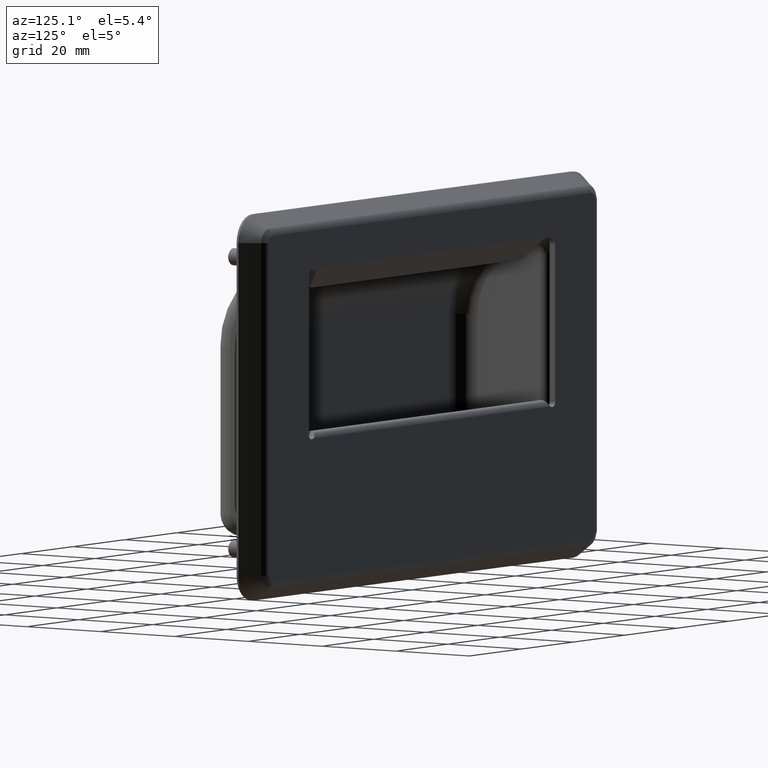
[diagram: clean part render]
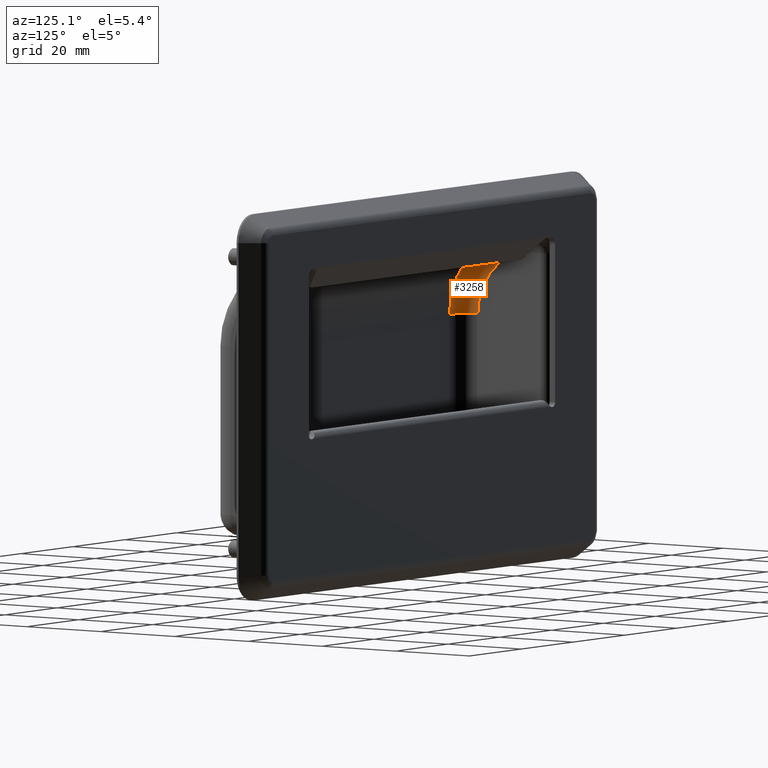
[diagram: same view with one face highlighted and labeled with its STEP entity id]
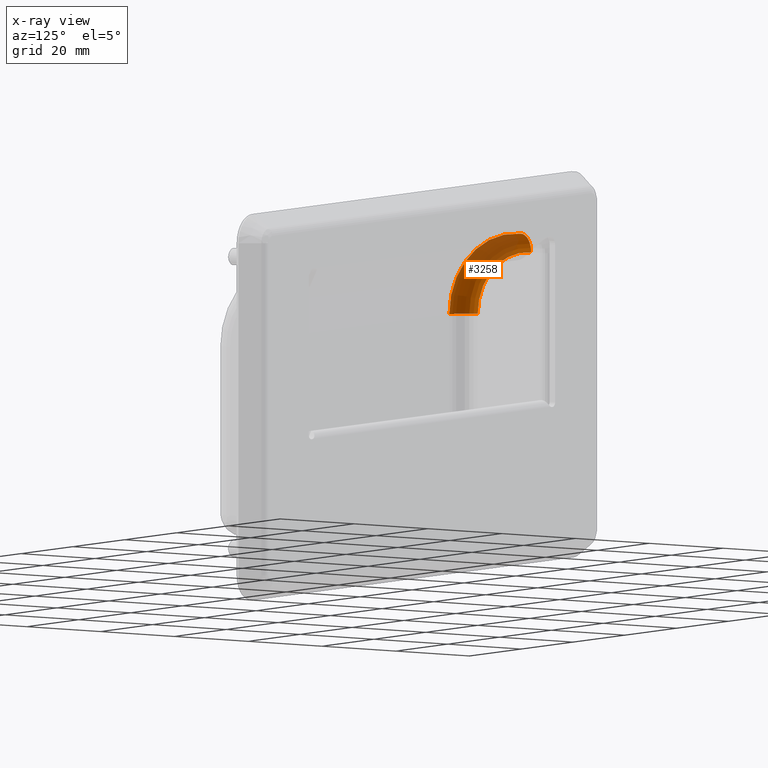
[diagram: x-ray of the same camera — body ghosted, the highlighted face saturated]
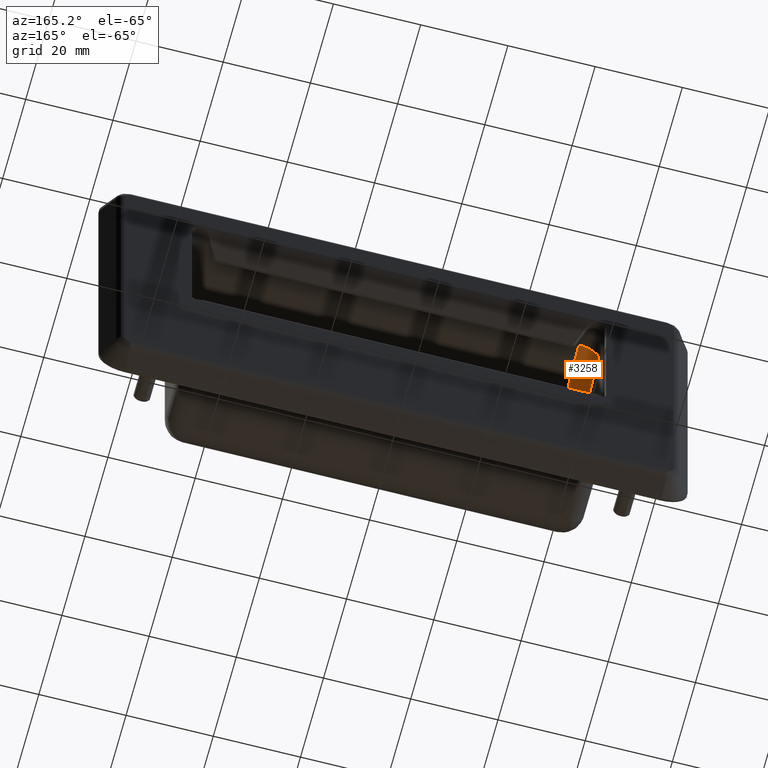
[diagram: same view with one face highlighted and labeled with its STEP entity id]
A machine part, auxiliary view. The second image highlights one B-rep face of the part: STEP entity #3258.
The next image is the same camera in x-ray: the body ghosted, the highlighted face saturated — about 37% of this face is hidden behind the body in this view.
A second angle (auxiliary view) of the same face is appended — the face is thin or edge-on in the first view.
In plain terms, the highlighted toroidal blend (fillet) surface has major radius 14.5 mm and minor (blend) radius 4.5 mm.
Its self-contained STEP definition (entity closure, byte-faithful):
#32=TOROIDAL_SURFACE('',#3556,14.5,4.5);
#443=FACE_OUTER_BOUND('',#667,.T.);
#667=EDGE_LOOP('',(#2943,#2944,#2945,#2946));
#1331=CIRCLE('',#3555,4.5);
#1332=CIRCLE('',#3557,4.5);
#1333=CIRCLE('',#3558,19.);
#1334=CIRCLE('',#3559,14.5);
#1630=VERTEX_POINT('',#7259);
#1631=VERTEX_POINT('',#7260);
#1632=VERTEX_POINT('',#7265);
#1633=VERTEX_POINT('',#7266);
#2078=EDGE_CURVE('',#1630,#1631,#1331,.T.);
#2081=EDGE_CURVE('',#1632,#1633,#1332,.T.);
#2082=EDGE_CURVE('',#1633,#1631,#1333,.T.);
#2083=EDGE_CURVE('',#1630,#1632,#1334,.T.);
#2943=ORIENTED_EDGE('',*,*,#2081,.T.);
#2944=ORIENTED_EDGE('',*,*,#2082,.T.);
#2945=ORIENTED_EDGE('',*,*,#2078,.F.);
#2946=ORIENTED_EDGE('',*,*,#2083,.T.);
#3258=ADVANCED_FACE('',(#443),#32,.F.);
#3555=AXIS2_PLACEMENT_3D('',#7261,#4357,#4358);
#3556=AXIS2_PLACEMENT_3D('',#7264,#4361,#4362);
#3557=AXIS2_PLACEMENT_3D('',#7267,#4363,#4364);
#3558=AXIS2_PLACEMENT_3D('',#7268,#4365,#4366);
#3559=AXIS2_PLACEMENT_3D('',#7269,#4367,#4368);
#4357=DIRECTION('center_axis',(0.,0.,1.));
#4358=DIRECTION('ref_axis',(-1.,0.,0.));
#4361=DIRECTION('center_axis',(-1.,0.,0.));
#4362=DIRECTION('ref_axis',(0.,0.,1.));
#4363=DIRECTION('center_axis',(0.,1.,-2.46716227694479E-16));
#4364=DIRECTION('ref_axis',(-1.,0.,0.));
#4365=DIRECTION('center_axis',(1.,0.,0.));
#4366=DIRECTION('ref_axis',(0.,-0.707106781186548,0.707106781186547));
#4367=DIRECTION('center_axis',(-1.,0.,0.));
#4368=DIRECTION('ref_axis',(0.,-0.707106781186548,0.707106781186547));
#7259=CARTESIAN_POINT('',(-47.5,-19.,11.5));
#7260=CARTESIAN_POINT('',(-43.,-23.5,11.5));
#7261=CARTESIAN_POINT('Origin',(-43.,-19.,11.5));
#7264=CARTESIAN_POINT('Origin',(-43.,-4.5,11.5));
#7265=CARTESIAN_POINT('',(-47.5,-4.50000000000001,26.));
#7266=CARTESIAN_POINT('',(-43.,-4.5,30.5));
#7267=CARTESIAN_POINT('Origin',(-43.,-4.50000000000001,26.));
#7268=CARTESIAN_POINT('Origin',(-43.,-4.5,11.5));
#7269=CARTESIAN_POINT('Origin',(-47.5,-4.5,11.5));